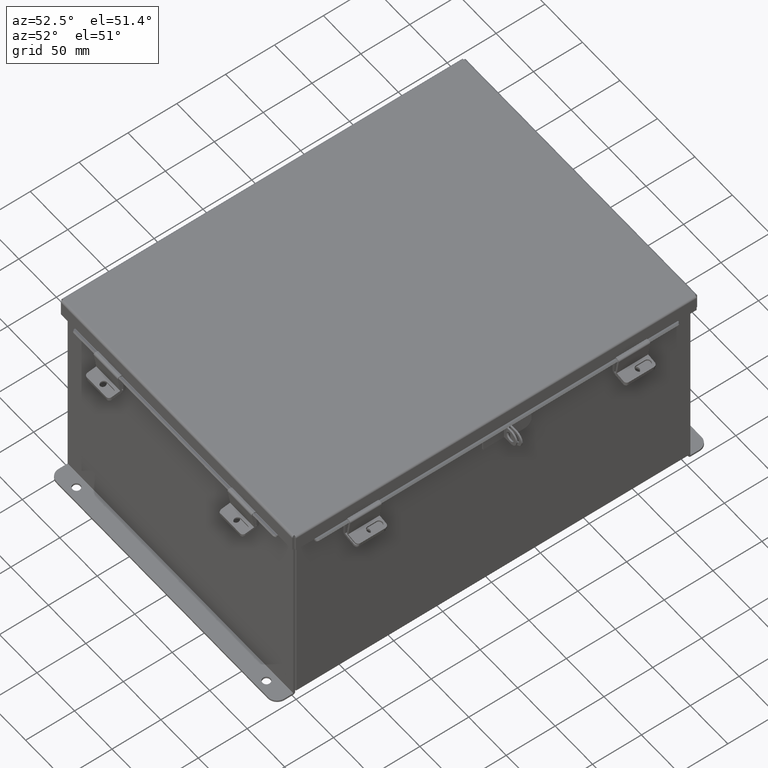
[diagram: clean part render]
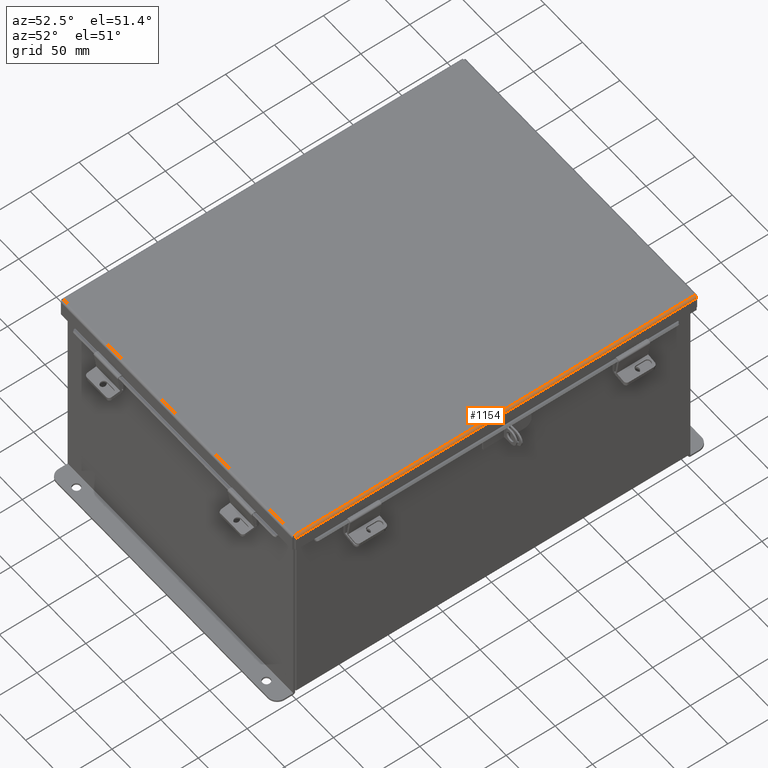
[diagram: same view with one face highlighted and labeled with its STEP entity id]
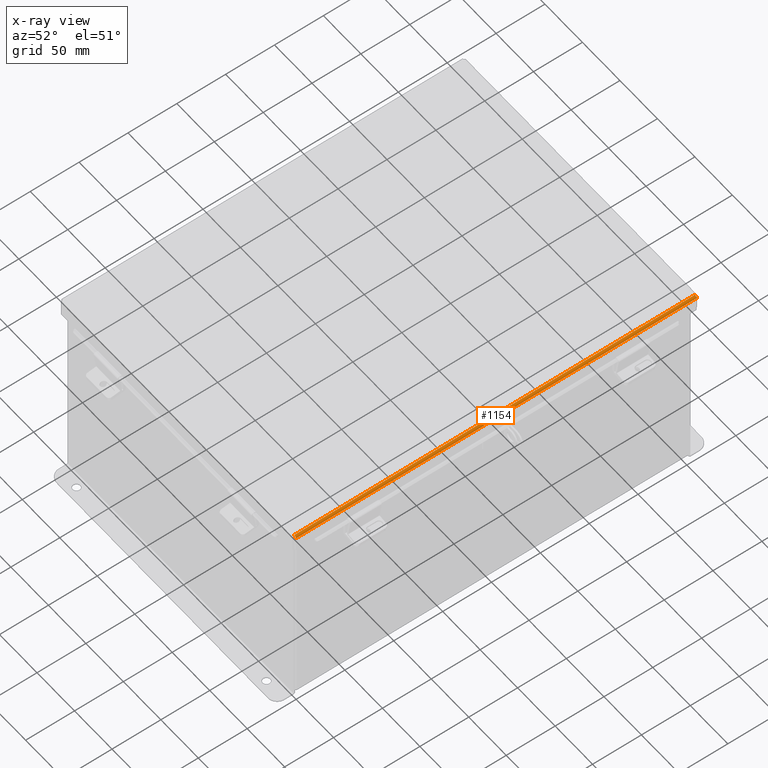
[diagram: x-ray of the same camera — body ghosted, the highlighted face saturated]
A machine part, auxiliary view. The second image highlights one B-rep face of the part: STEP entity #1154.
The next image is the same camera in x-ray: the body ghosted, the highlighted face saturated — about 0% of this face is hidden behind the body in this view.
In plain terms, the highlighted cylindrical surface (edge-blend (fillet) strip) has radius 2.2276 mm, axis along (-0, -1, -0).
Its self-contained STEP definition (entity closure, byte-faithful):
#458 = B_SPLINE_CURVE_WITH_KNOTS ( 'NONE', 3,
 ( #6067, #5868, #11777, #10335, #2646, #8585, #720, #16416, #3839, #16538 ),
 .UNSPECIFIED., .F., .F.,
 ( 4, 2, 2, 2, 4 ),
 ( 0.0000000000000000000, 0.2500000000000000000, 0.5000000000000000000, 0.7500000000000000000, 1.000000000000000000 ),
 .UNSPECIFIED. ) ;
#483 = CARTESIAN_POINT ( 'NONE',  ( -6.153967403743831000, -8.073490776823446100, -0.009955289458309512700 ) ) ;
#662 = CARTESIAN_POINT ( 'NONE',  ( -6.068550000000025900, -8.074478932188135600, -0.07470000000000125200 ) ) ;
#720 = CARTESIAN_POINT ( 'NONE',  ( -6.145181066258684800, 8.072502621458756500, -0.03116738457852839800 ) ) ;
#1154 = ADVANCED_FACE ( 'NONE', ( #13178 ), #12675, .T. ) ;
#1175 = CARTESIAN_POINT ( 'NONE',  ( -6.156250000000017800, 8.074478932188135600, 0.01300000000000010700 ) ) ;
#1591 = VERTEX_POINT ( 'NONE', #15645 ) ;
#1813 = VERTEX_POINT ( 'NONE', #1175 ) ;
#1864 = LINE ( 'NONE', #16799, #17884 ) ;
#2094 = CARTESIAN_POINT ( 'NONE',  ( -6.138680782078338000, -8.072008543776412600, -0.04089574734180102800 ) ) ;
#2646 = CARTESIAN_POINT ( 'NONE',  ( -6.122445747341816800, 8.071020388411723100, -0.05713078207832068800 ) ) ;
#3639 = CARTESIAN_POINT ( 'NONE',  ( -6.112717384578546700, -8.070526310729377400, -0.06363106625866966900 ) ) ;
#3714 = VECTOR ( 'NONE', #9945, 39.37007874015748100 ) ;
#3839 = CARTESIAN_POINT ( 'NONE',  ( -6.156250000000017800, 8.073984854505791700, 0.001520096845006540700 ) ) ;
#3996 = EDGE_LOOP ( 'NONE', ( #8859, #4945, #10778, #14864 ) ) ;
#4137 = DIRECTION ( 'NONE',  ( -1.000000000000000000, 0.0000000000000000000, -3.577373637655407700E-015 ) ) ;
#4297 = DIRECTION ( 'NONE',  ( 2.916455381721308100E-030, 1.000000000000000000, 6.698784352282061800E-017 ) ) ;
#4655 = EDGE_CURVE ( 'NONE', #19072, #1813, #458, .T. ) ;
#4945 = ORIENTED_EDGE ( 'NONE', *, *, #14044, .F. ) ;
#5177 = CARTESIAN_POINT ( 'NONE',  ( -6.080029903155010900, -8.069044077682344000, -0.07470000000000139000 ) ) ;
#5272 = CARTESIAN_POINT ( 'NONE',  ( -6.068550000000025900, 8.068550000000000100, -0.07469999999999907300 ) ) ;
#5868 = CARTESIAN_POINT ( 'NONE',  ( -6.080029903155008200, 8.069044077682344000, -0.07470000000000007200 ) ) ;
#6064 = EDGE_CURVE ( 'NONE', #16125, #1813, #1864, .T. ) ;
#6067 = CARTESIAN_POINT ( 'NONE',  ( -6.068550000000025900, 8.068550000000000100, -0.07469999999999907300 ) ) ;
#6442 = AXIS2_PLACEMENT_3D ( 'NONE', #15444, #7194, #4137 ) ;
#7194 = DIRECTION ( 'NONE',  ( -3.347226646114128200E-030, -1.000000000000000000, -8.208677865579519900E-017 ) ) ;
#8213 = CARTESIAN_POINT ( 'NONE',  ( -6.156250000000017800, -8.074478932188135600, 0.01299999999999901400 ) ) ;
#8585 = CARTESIAN_POINT ( 'NONE',  ( -6.138680782078338000, 8.072008543776412600, -0.04089574734180047300 ) ) ;
#8716 = EDGE_CURVE ( 'NONE', #1591, #19072, #11466, .T. ) ;
#8859 = ORIENTED_EDGE ( 'NONE', *, *, #8716, .F. ) ;
#9782 = CARTESIAN_POINT ( 'NONE',  ( -6.156250000000017800, -8.073984854505788200, 0.001520096845006759300 ) ) ;
#9945 = DIRECTION ( 'NONE',  ( 3.347226646114128200E-030, 1.000000000000000000, 8.208677865579519900E-017 ) ) ;
#10335 = CARTESIAN_POINT ( 'NONE',  ( -6.112717384578543200, 8.070526310729377400, -0.06363106625866860000 ) ) ;
#10778 = ORIENTED_EDGE ( 'NONE', *, *, #6064, .T. ) ;
#11350 = CARTESIAN_POINT ( 'NONE',  ( -6.145181066258684800, -8.072502621458754700, -0.03116738457852874500 ) ) ;
#11466 = LINE ( 'NONE', #662, #3714 ) ;
#11777 = CARTESIAN_POINT ( 'NONE',  ( -6.091505289458327300, 8.069538155364691400, -0.07241740374381139300 ) ) ;
#12288 = B_SPLINE_CURVE_WITH_KNOTS ( 'NONE', 3,
 ( #8213, #9782, #483, #11350, #2094, #12929, #3639, #14533, #5177, #16041 ),
 .UNSPECIFIED., .F., .F.,
 ( 4, 2, 2, 2, 4 ),
 ( 0.0000000000000000000, 0.2500000000000000000, 0.5000000000000000000, 0.7500000000000000000, 1.000000000000000000 ),
 .UNSPECIFIED. ) ;
#12675 = CYLINDRICAL_SURFACE ( 'NONE', #6442, 0.08770000000000026400 ) ;
#12929 = CARTESIAN_POINT ( 'NONE',  ( -6.122445747341815900, -8.071020388411723100, -0.05713078207832158300 ) ) ;
#13178 = FACE_OUTER_BOUND ( 'NONE', #3996, .T. ) ;
#14044 = EDGE_CURVE ( 'NONE', #16125, #1591, #12288, .T. ) ;
#14533 = CARTESIAN_POINT ( 'NONE',  ( -6.091505289458327300, -8.069538155364687900, -0.07241740374381264200 ) ) ;
#14864 = ORIENTED_EDGE ( 'NONE', *, *, #4655, .F. ) ;
#15444 = CARTESIAN_POINT ( 'NONE',  ( -6.068550000000017000, -8.074478932188135600, 0.01299999999999901400 ) ) ;
#15645 = CARTESIAN_POINT ( 'NONE',  ( -6.068550000000025900, -8.068550000000000100, -0.07470000000000125200 ) ) ;
#16041 = CARTESIAN_POINT ( 'NONE',  ( -6.068550000000025900, -8.068550000000000100, -0.07470000000000125200 ) ) ;
#16125 = VERTEX_POINT ( 'NONE', #17678 ) ;
#16416 = CARTESIAN_POINT ( 'NONE',  ( -6.153967403743830100, 8.073490776823446100, -0.009955289458309552600 ) ) ;
#16538 = CARTESIAN_POINT ( 'NONE',  ( -6.156250000000017800, 8.074478932188135600, 0.01300000000000010700 ) ) ;
#16799 = CARTESIAN_POINT ( 'NONE',  ( -6.156250000000017800, 8.156250000000000000, 0.01300000000000010700 ) ) ;
#17678 = CARTESIAN_POINT ( 'NONE',  ( -6.156250000000017800, -8.074478932188135600, 0.01299999999999901400 ) ) ;
#17884 = VECTOR ( 'NONE', #4297, 39.37007874015748100 ) ;
#19072 = VERTEX_POINT ( 'NONE', #5272 ) ;